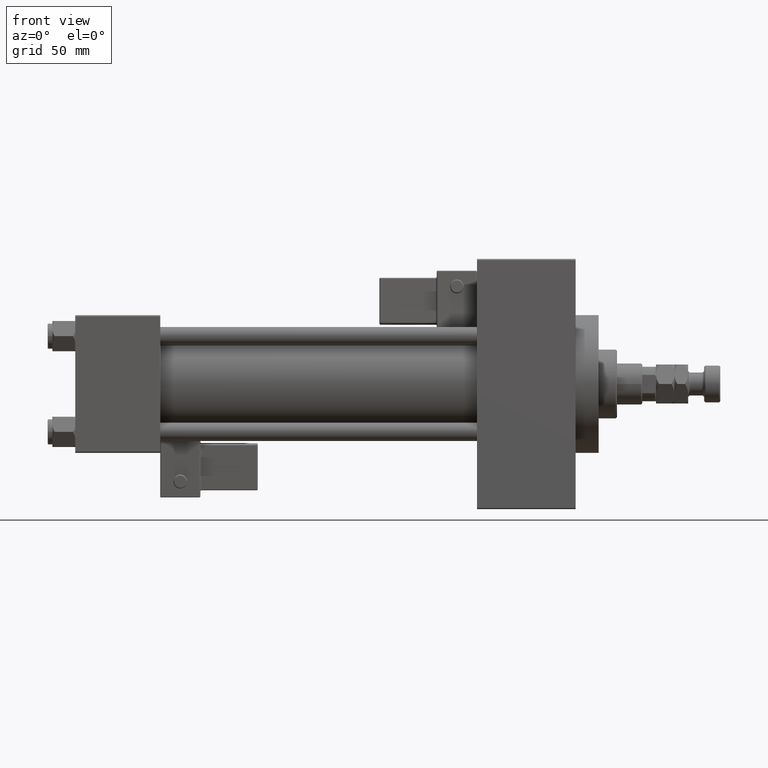
[diagram: clean part render]
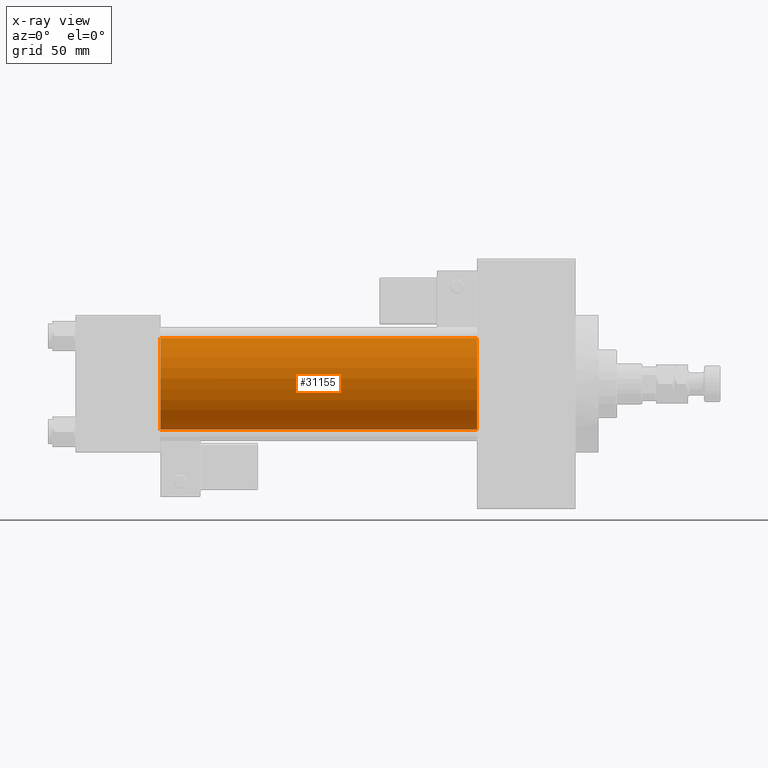
[diagram: x-ray — body ghosted, one internal face saturated and labeled with its STEP entity id]
A machine part, front view, then the same camera in x-ray: the body is ghosted and one INTERNAL B-rep face — a face not visible from any outside direction — is saturated and labeled: STEP entity #31155.
In plain terms, the highlighted cylindrical surface (partial cylindrical patch) has radius 20 mm, axis along (-1, -0, -0).
Its self-contained STEP definition (entity closure, byte-faithful):
#2146 = LINE ( 'NONE', #26012, #48130 ) ;
#3308 = ORIENTED_EDGE ( 'NONE', *, *, #36518, .F. ) ;
#3903 = CYLINDRICAL_SURFACE ( 'NONE', #8606, 20.00000000000000000 ) ;
#8382 = VECTOR ( 'NONE', #16705, 1000.000000000000000 ) ;
#8414 = CIRCLE ( 'NONE', #20025, 20.00000000000000000 ) ;
#8606 = AXIS2_PLACEMENT_3D ( 'NONE', #43065, #50602, #19726 ) ;
#8935 = LINE ( 'NONE', #29152, #8382 ) ;
#9919 = ORIENTED_EDGE ( 'NONE', *, *, #37844, .T. ) ;
#10690 = CARTESIAN_POINT ( 'NONE',  ( 37.00000000000000000, -2.602085213965210642E-15, 0.000000000000000000 ) ) ;
#13347 = ORIENTED_EDGE ( 'NONE', *, *, #28214, .T. ) ;
#16705 = DIRECTION ( 'NONE',  ( -1.000000000000000000, -0.000000000000000000, -0.000000000000000000 ) ) ;
#18189 = DIRECTION ( 'NONE',  ( 1.000000000000000000, 0.000000000000000000, 0.000000000000000000 ) ) ;
#18218 = DIRECTION ( 'NONE',  ( 0.000000000000000000, 0.000000000000000000, -1.000000000000000000 ) ) ;
#19726 = DIRECTION ( 'NONE',  ( 0.000000000000000000, 0.000000000000000000, 1.000000000000000000 ) ) ;
#20025 = AXIS2_PLACEMENT_3D ( 'NONE', #10690, #18189, #38905 ) ;
#21822 = CARTESIAN_POINT ( 'NONE',  ( 175.0000000000000284, -2.602085213965210642E-15, 20.00000000000000000 ) ) ;
#22117 = EDGE_CURVE ( 'NONE', #30592, #43448, #2146, .T. ) ;
#22238 = CARTESIAN_POINT ( 'NONE',  ( 37.00000000000000000, -1.527916156705042519E-16, -20.00000000000000000 ) ) ;
#22864 = FACE_OUTER_BOUND ( 'NONE', #46420, .T. ) ;
#26008 = CARTESIAN_POINT ( 'NONE',  ( 175.0000000000000284, -2.602085213965210642E-15, 0.000000000000000000 ) ) ;
#26012 = CARTESIAN_POINT ( 'NONE',  ( 175.0000000000000284, -2.602085213965210642E-15, 20.00000000000000000 ) ) ;
#28214 = EDGE_CURVE ( 'NONE', #30592, #35727, #38270, .T. ) ;
#29152 = CARTESIAN_POINT ( 'NONE',  ( 175.0000000000000284, -1.527916156705042519E-16, -20.00000000000000000 ) ) ;
#29900 = DIRECTION ( 'NONE',  ( 1.000000000000000000, 0.000000000000000000, 0.000000000000000000 ) ) ;
#30592 = VERTEX_POINT ( 'NONE', #21822 ) ;
#31155 = ADVANCED_FACE ( 'NONE', ( #22864 ), #3903, .F. ) ;
#35727 = VERTEX_POINT ( 'NONE', #40702 ) ;
#36518 = EDGE_CURVE ( 'NONE', #43448, #37510, #8414, .T. ) ;
#37510 = VERTEX_POINT ( 'NONE', #22238 ) ;
#37844 = EDGE_CURVE ( 'NONE', #35727, #37510, #8935, .T. ) ;
#38270 = CIRCLE ( 'NONE', #49859, 20.00000000000000000 ) ;
#38905 = DIRECTION ( 'NONE',  ( 0.000000000000000000, 0.000000000000000000, -1.000000000000000000 ) ) ;
#40175 = CARTESIAN_POINT ( 'NONE',  ( 37.00000000000000000, -2.602085213965210642E-15, 20.00000000000000000 ) ) ;
#40702 = CARTESIAN_POINT ( 'NONE',  ( 175.0000000000000284, -1.527916156705042519E-16, -20.00000000000000000 ) ) ;
#42085 = DIRECTION ( 'NONE',  ( -1.000000000000000000, -0.000000000000000000, -0.000000000000000000 ) ) ;
#43065 = CARTESIAN_POINT ( 'NONE',  ( 175.0000000000000284, -2.602085213965210642E-15, 0.000000000000000000 ) ) ;
#43448 = VERTEX_POINT ( 'NONE', #40175 ) ;
#44859 = ORIENTED_EDGE ( 'NONE', *, *, #22117, .F. ) ;
#46420 = EDGE_LOOP ( 'NONE', ( #13347, #9919, #3308, #44859 ) ) ;
#48130 = VECTOR ( 'NONE', #42085, 1000.000000000000000 ) ;
#49859 = AXIS2_PLACEMENT_3D ( 'NONE', #26008, #29900, #18218 ) ;
#50602 = DIRECTION ( 'NONE',  ( -1.000000000000000000, -0.000000000000000000, -0.000000000000000000 ) ) ;